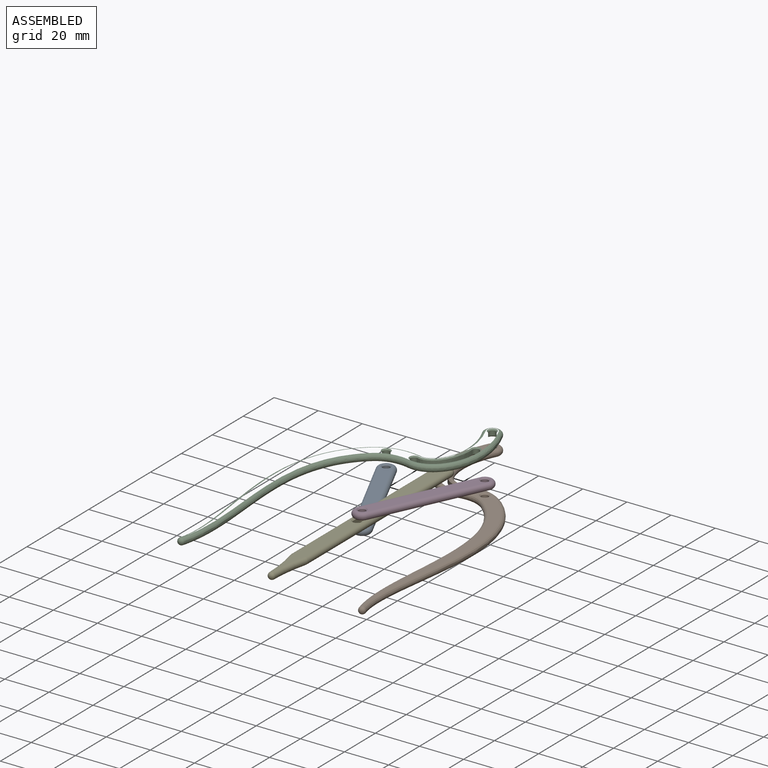
[diagram: assembled view]
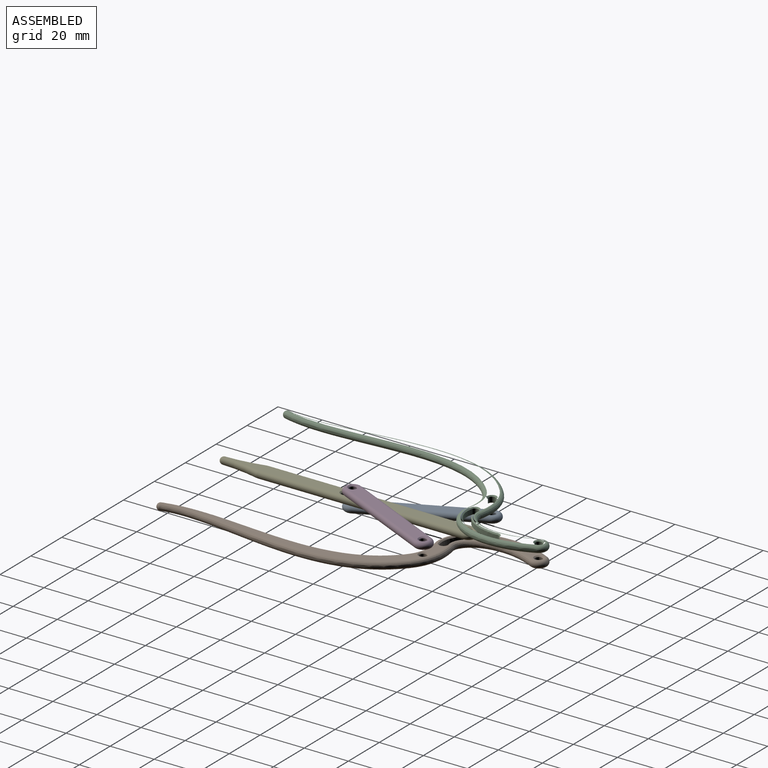
[diagram: assembled view, second angle]
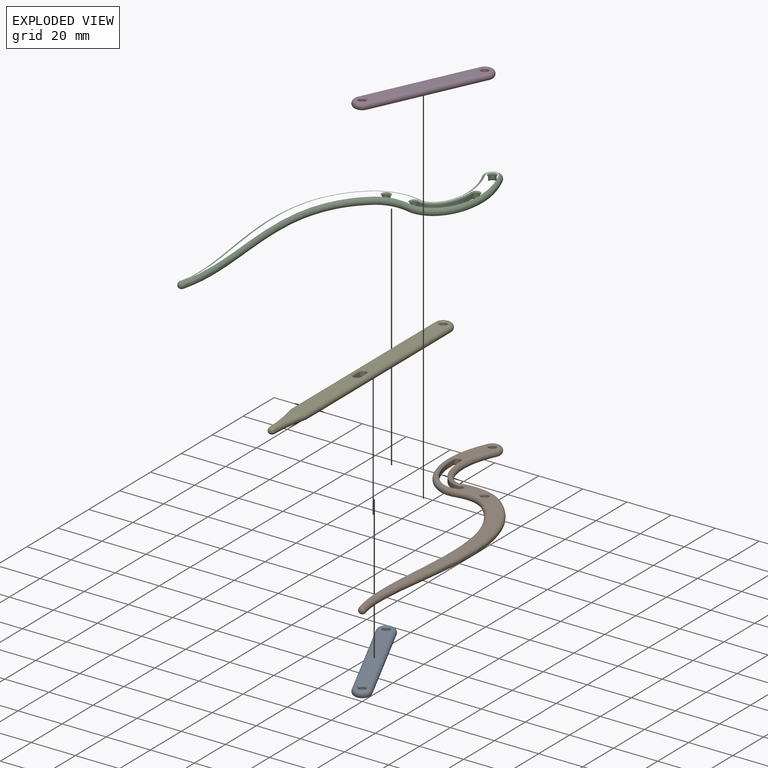
[diagram: exploded view]
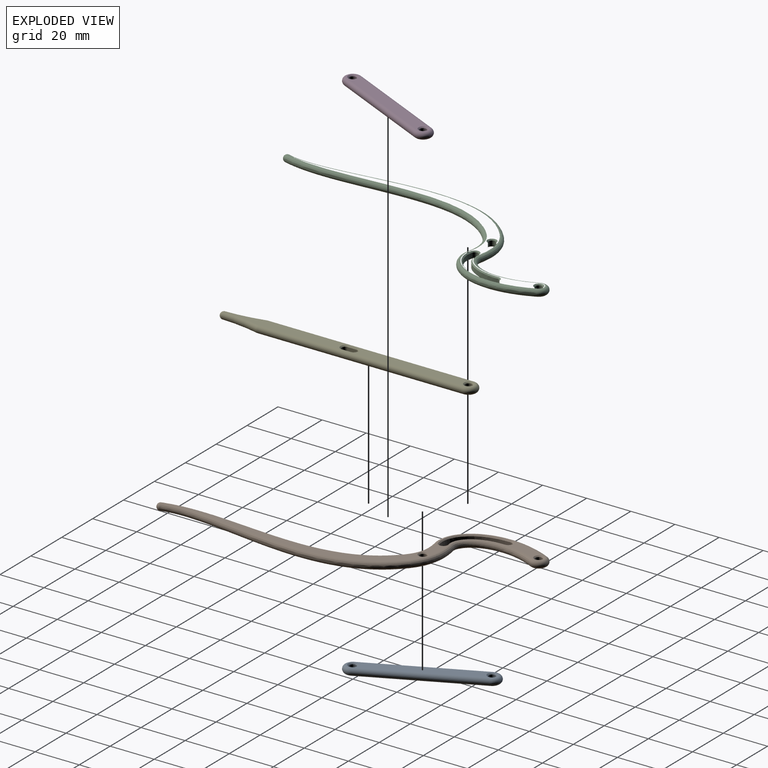
[diagram: exploded view, second angle]
ASSEMBLY  parts=5 mates=8
PART A: 16 faces, bbox 8.7x61.2x3.2 mm
  f0: plane 57.33x4.83mm, normal (0,0,1), area 244.2mm2, adj f4,f5,f6,f9,f14,f15
  f1: plane 57.33x4.83mm, normal (0,0,-1), area 244.2mm2, adj f7,f8,f10,f11,f12,f13
  f2: cylinder r=1.59mm len=3.18mm, axis (0,0,-1), area 21.7mm2, adj f12,f14
  f3: cylinder r=1.59mm len=3.18mm, axis (0,0,-1), area 21.7mm2, adj f13,f15
  f4: torus R=2.41mm, axis (0,0,1), area 26.8mm2, adj f0,f5,f6,f7
  f5: cylinder r=1.59mm len=52.5mm, axis (0,-1,0), area 130.9mm2, adj f0,f4,f8,f9
  f6: cylinder r=1.59mm len=52.5mm, axis (0,1,0), area 130.9mm2, adj f0,f4,f9,f10
  f7: torus R=2.41mm, axis (0,0,1), area 26.8mm2, adj f1,f4,f8,f10
  f8: cylinder r=1.59mm len=52.5mm, axis (0,1,0), area 130.9mm2, adj f1,f5,f7,f11
  f9: torus R=2.41mm, axis (0,0,1), area 26.8mm2, adj f0,f5,f6,f11
  f10: cylinder r=1.59mm len=52.5mm, axis (0,-1,0), area 130.9mm2, adj f1,f6,f7,f11
  f11: torus R=2.41mm, axis (0,0,1), area 26.8mm2, adj f1,f8,f9,f10
  f12: cone r=2.09mm half-angle=45deg, axis (0,0,-1), area 8.2mm2, adj f1,f2
  f13: cone r=2.09mm half-angle=45deg, axis (0,0,-1), area 8.2mm2, adj f1,f3
  f14: cone r=1.59mm half-angle=45deg, axis (0,0,1), area 8.2mm2, adj f0,f2
  f15: cone r=1.59mm half-angle=45deg, axis (0,0,1), area 8.2mm2, adj f0,f3
PART B: 46 faces, bbox 40.3x180x3.2 mm
  f0: plane 150.97x37.1mm, normal (0,0,1), area 465.1mm2, adj f11,f12,f15,f19,f20,f23,f28,f29
  f1: plane 150.98x37.09mm, normal (0,0,-1), area 464.7mm2, adj f8,f9,f10,f14,f17,f18,f22,f25
  f2: extruded ~20.48x8.41mm, area 53.9mm2, adj f3,f5,f36,f44
  f3: cylinder r=1.59mm len=3.1mm, axis (0,0,-1), area 10.8mm2, adj f2,f4,f38,f42
  f4: extruded ~24.59x11.58mm, area 66.8mm2, adj f3,f5,f37,f43
  f5: cylinder r=1.59mm len=3.18mm, axis (0,0,-1), area 10.8mm2, adj f2,f4,f35,f45
  f6: cylinder r=1.59mm len=3.18mm, axis (0,0,-1), area 21.7mm2, adj f34,f41
  f7: cylinder r=1.59mm len=3.18mm, axis (0,0,-1), area 21.7mm2, adj f39,f40
  f8: bspline ~20.55x9.03mm, area 53.4mm2, adj f1,f9,f10,f11
  f9: bspline ~19.95x12.34mm, area 53.4mm2, adj f1,f8,f12,f13
  f10: bspline ~18.59x11.63mm, area 39.8mm2, adj f1,f8,f14,f15
  f11: bspline ~20.55x9.03mm, area 53.4mm2, adj f0,f8,f12,f15
  f12: bspline ~19.95x12.34mm, area 53.4mm2, adj f0,f9,f11,f16
  f13: sphere r=1.59mm, area 0mm2, adj f9,f16,f17
  f14: torus R=2.41mm, axis (0,0,-1), area 26.8mm2, adj f1,f10,f18,f19
  f15: bspline ~18.59x11.63mm, area 39.8mm2, adj f0,f10,f11,f19
  f16: sphere r=1.59mm, area 0mm2, adj f12,f13,f20
  f17: bspline ~124.34x25.7mm, area 274.9mm2, adj f1,f13,f20,f21
  f18: bspline ~23.69x14.49mm, area 47.1mm2, adj f1,f14,f22,f23
  f19: torus R=2.41mm, axis (0,0,-1), area 26.8mm2, adj f0,f14,f15,f23
  f20: bspline ~124.34x25.7mm, area 274.9mm2, adj f0,f16,f17,f24
  f21: sphere r=1.59mm, area 7.9mm2, adj f17,f24,f25
  f22: bspline ~34.98x14.37mm, area 84.5mm2, adj f1,f18,f27,f28
  f23: bspline ~23.69x14.49mm, area 47.1mm2, adj f0,f18,f19,f28
  f24: sphere r=1.59mm, area 7.9mm2, adj f20,f21,f29
  f25: bspline ~127.02x21.36mm, area 260.4mm2, adj f1,f21,f26,f29
  f26: sphere r=1.59mm, area 0mm2, adj f25,f30,f32
  f27: torus R=3.17mm, axis (0,0,-1), area 0.3mm2, adj f1,f22,f30,f31
  f28: bspline ~29.59x14.37mm, area 84.5mm2, adj f0,f22,f23,f31
  f29: bspline ~127.02x21.36mm, area 260.4mm2, adj f0,f24,f25,f32
  f30: bspline ~15.54x10.36mm, area 38.7mm2, adj f1,f26,f27,f33
  f31: torus R=3.17mm, axis (0,0,-1), area 0.3mm2, adj f0,f27,f28,f33
  f32: sphere r=1.59mm, area 0mm2, adj f26,f29,f33
  f33: bspline ~15.41x10.35mm, area 38.7mm2, adj f0,f30,f31,f32
  f34: cone r=2.09mm half-angle=45deg, axis (0,0,-1), area 8.2mm2, adj f1,f6
  f35: cone r=2.09mm half-angle=45deg, axis (0,0,-1), area 4.1mm2, adj f1,f5,f36,f37
  f36: bspline ~20.48x8.41mm, area 17.2mm2, adj f1,f2,f35,f38
  f37: bspline ~25.23x12.08mm, area 22mm2, adj f1,f4,f35,f38
  f38: cone r=2.09mm half-angle=45deg, axis (0,0,-1), area 4.1mm2, adj f1,f3,f36,f37
  f39: cone r=2.09mm half-angle=45deg, axis (0,0,-1), area 8.2mm2, adj f1,f7
  f40: cone r=1.59mm half-angle=45deg, axis (0,0,1), area 8.2mm2, adj f0,f7
  f41: cone r=1.59mm half-angle=45deg, axis (0,0,1), area 8.2mm2, adj f0,f6
  f42: cone r=1.59mm half-angle=45deg, axis (0,0,1), area 4.1mm2, adj f0,f3,f43,f44
  f43: bspline ~25.23x12.08mm, area 22mm2, adj f0,f4,f42,f45
  f44: bspline ~20.48x8.41mm, area 17.2mm2, adj f0,f2,f42,f45
  f45: cone r=1.59mm half-angle=45deg, axis (0,0,1), area 4.1mm2, adj f0,f5,f43,f44
PART C: same geometry as B
PART D: same geometry as A
PART E: 33 faces, bbox 8.7x116.8x3.2 mm
  f0: plane 113.33x4.83mm, normal (0,0,1), area 445.7mm2, adj f12,f13,f16,f17,f20,f21,f22,f23
  f1: plane 113.33x4.83mm, normal (0,0,-1), area 445.7mm2, adj f8,f10,f11,f14,f15,f18,f19,f28
  f2: cylinder r=1.59mm len=3.18mm, axis (0,0,-1), area 21.7mm2, adj f27,f28
  f3: cylinder r=1.59mm len=3.18mm, axis (0,0,-1), area 10.8mm2, adj f4,f6,f23,f30
  f4: plane 4x2.18mm, normal (1,0,0), area 8.7mm2, adj f3,f5,f24,f32
  f5: cylinder r=1.59mm len=3.18mm, axis (0,0,-1), area 10.8mm2, adj f4,f6,f26,f31
  f6: plane 4x2.18mm, normal (-1,0,0), area 8.7mm2, adj f3,f5,f25,f29
  f7: sphere r=1.59mm, area 7.8mm2, adj f8,f9,f10
  f8: torus R=76.59mm, axis (0,0,1), area 43.2mm2, adj f1,f7,f11,f12
  f9: sphere r=1.59mm, area 7.8mm2, adj f7,f12,f13
  f10: torus R=76.59mm, axis (0,0,1), area 43.2mm2, adj f1,f7,f13,f14
  f11: torus R=1.59mm, axis (0,0,1), area 1.6mm2, adj f1,f8,f15,f16
  f12: torus R=76.59mm, axis (0,0,1), area 43.2mm2, adj f0,f8,f9,f16
  f13: torus R=76.59mm, axis (0,0,1), area 43.2mm2, adj f0,f9,f10,f17
  f14: torus R=1.59mm, axis (0,0,1), area 1.6mm2, adj f1,f10,f17,f18
  f15: cylinder r=1.59mm len=93.16mm, axis (0,1,0), area 232.3mm2, adj f1,f11,f19,f20
  f16: torus R=1.59mm, axis (0,0,1), area 1.6mm2, adj f0,f11,f12,f20
  f17: torus R=1.59mm, axis (0,0,1), area 1.6mm2, adj f0,f13,f14,f21
  f18: cylinder r=1.59mm len=93.16mm, axis (0,-1,0), area 232.3mm2, adj f1,f14,f19,f21
  f19: torus R=2.41mm, axis (0,0,1), area 26.8mm2, adj f1,f15,f18,f22
  f20: cylinder r=1.59mm len=93.16mm, axis (0,-1,0), area 232.3mm2, adj f0,f15,f16,f22
  f21: cylinder r=1.59mm len=93.16mm, axis (0,1,0), area 232.3mm2, adj f0,f17,f18,f22
  f22: torus R=2.41mm, axis (0,0,1), area 26.8mm2, adj f0,f19,f20,f21
  f23: cone r=1.59mm half-angle=45deg, axis (0,0,1), area 4.1mm2, adj f0,f3,f24,f25
  f24: plane 4x0.5mm, normal (0.71,0,0.71), area 2.8mm2, adj f0,f4,f23,f26
  f25: plane 4x0.5mm, normal (-0.71,0,0.71), area 2.8mm2, adj f0,f6,f23,f26
  f26: cone r=1.59mm half-angle=45deg, axis (0,0,1), area 4.1mm2, adj f0,f5,f24,f25
  f27: cone r=1.59mm half-angle=45deg, axis (0,0,1), area 8.2mm2, adj f0,f2
  f28: cone r=2.09mm half-angle=45deg, axis (0,0,-1), area 8.2mm2, adj f1,f2
  f29: plane 4x0.5mm, normal (-0.71,0,-0.71), area 2.8mm2, adj f1,f6,f30,f31
  f30: cone r=2.09mm half-angle=45deg, axis (0,0,-1), area 4.1mm2, adj f1,f3,f29,f32
  f31: cone r=2.09mm half-angle=45deg, axis (0,0,-1), area 4.1mm2, adj f1,f5,f29,f32
  f32: plane 4x0.5mm, normal (0.71,0,-0.71), area 2.8mm2, adj f1,f4,f30,f31
PLACE A rot(axis=(0,0,1),25.2deg) t=(0,60.01,-3.18)mm
PLACE B rot(axis=(0,0,1),15.8deg) t=(40.85,0,-3.18)mm
PLACE C rot(axis=(-0.14,-0.99,0),180deg) t=(-40.85,0,6.35)mm
PLACE D rot(axis=(0.22,0.98,0),180deg) t=(0,60.01,6.35)mm
PLACE E at identity fixed
MATE planar B.f0 <-> E.f1  axis (0,0,1) through (28.26,88.2,0)mm
MATE cylindrical B.f7 <-> D.f3  axis (0,0,-1) through (22.33,107.52,-0.5)mm
MATE cylindrical D.f2 <-> A.f2  axis (0,0,1) through (0,60.01,5.85)mm
MATE cylindrical B.f6 <-> C.f6  axis (0,0,-1) through (0,144.33,-1.59)mm
MATE planar A.f0 <-> E.f1  axis (0,0,1) through (-11.17,83.77,0)mm
MATE cylindrical A.f3 <-> C.f7  axis (0,0,-1) through (-22.33,107.52,-1.59)mm
MATE planar C.f0 <-> E.f0  axis (0,0,-1) through (-28.26,88.2,3.18)mm
MATE planar D.f0 <-> E.f0  axis (0,0,-1) through (11.17,83.77,3.17)mm
